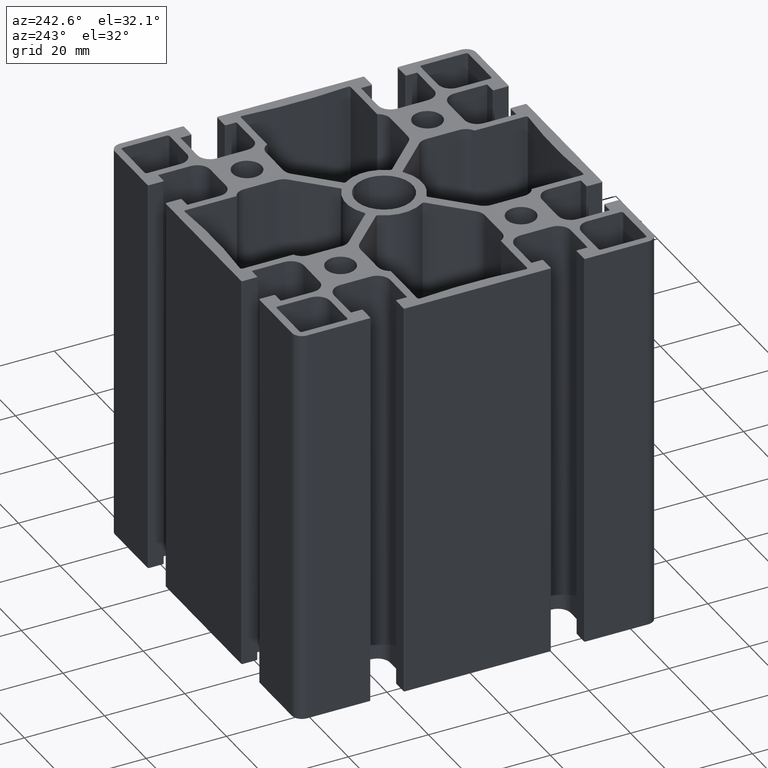
[diagram: clean part render]
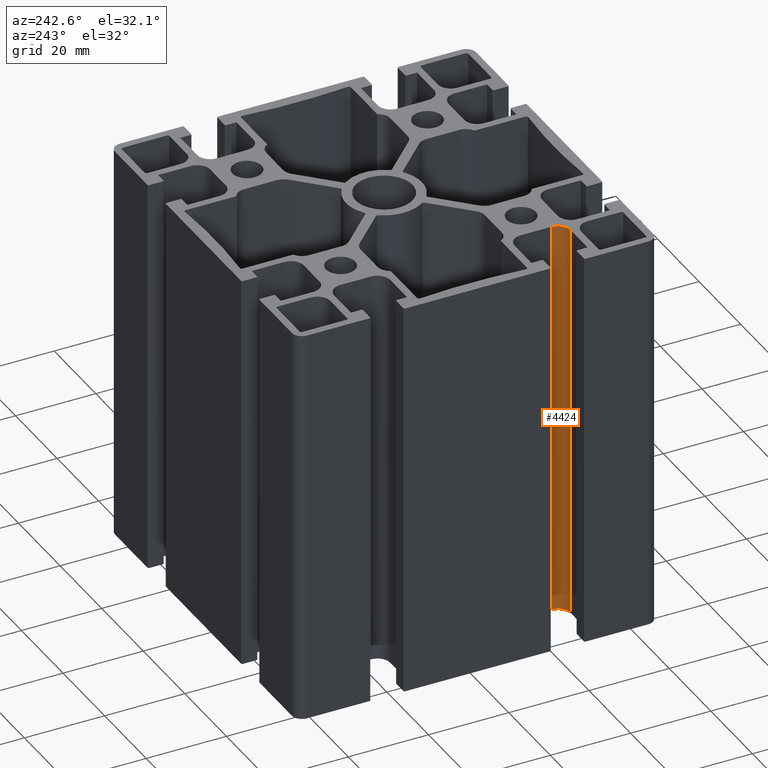
[diagram: same view with one face highlighted and labeled with its STEP entity id]
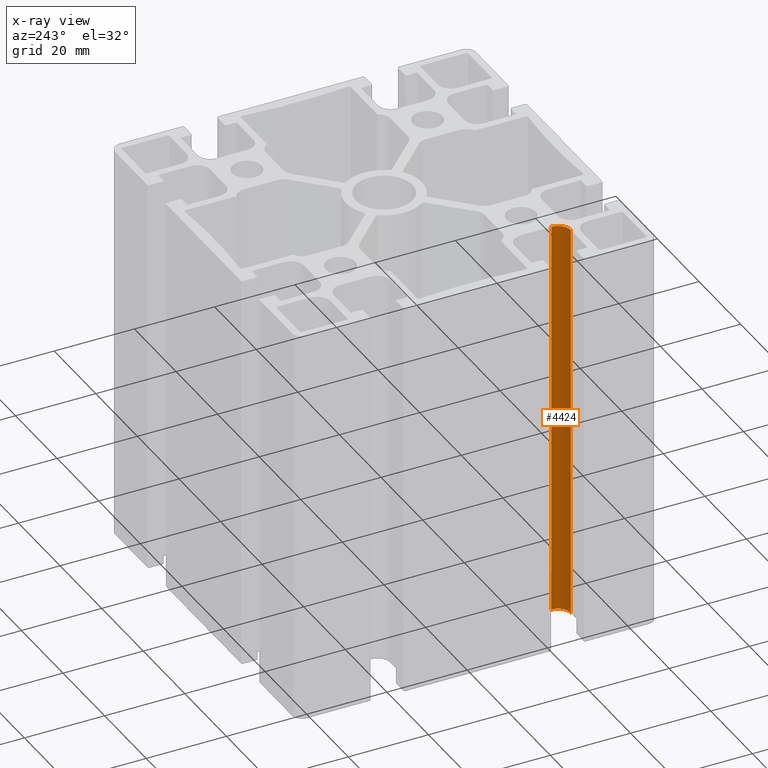
[diagram: x-ray of the same camera — body ghosted, the highlighted face saturated]
A machine part, auxiliary view. The second image highlights one B-rep face of the part: STEP entity #4424.
The next image is the same camera in x-ray: the body ghosted, the highlighted face saturated — about 0% of this face is hidden behind the body in this view.
In plain terms, the highlighted cylindrical surface (edge-blend (fillet) strip) has radius 3.2 mm, axis along (0, 0, 1).
Its self-contained STEP definition (entity closure, byte-faithful):
#328=FACE_OUTER_BOUND('',#556,.T.);
#556=EDGE_LOOP('',(#3501,#3502,#3503,#3504));
#959=LINE('',#7287,#1391);
#961=LINE('',#7293,#1393);
#1391=VECTOR('',#5966,100.);
#1393=VECTOR('',#5972,100.);
#1681=CIRCLE('',#4834,3.20000000000004);
#1682=CIRCLE('',#4835,3.20000000000004);
#2067=VERTEX_POINT('',#7284);
#2068=VERTEX_POINT('',#7286);
#2069=VERTEX_POINT('',#7290);
#2070=VERTEX_POINT('',#7292);
#2675=EDGE_CURVE('',#2067,#2068,#959,.T.);
#2677=EDGE_CURVE('',#2067,#2069,#1681,.T.);
#2678=EDGE_CURVE('',#2069,#2070,#961,.T.);
#2679=EDGE_CURVE('',#2068,#2070,#1682,.T.);
#3501=ORIENTED_EDGE('',*,*,#2677,.T.);
#3502=ORIENTED_EDGE('',*,*,#2678,.T.);
#3503=ORIENTED_EDGE('',*,*,#2679,.F.);
#3504=ORIENTED_EDGE('',*,*,#2675,.F.);
#4231=CYLINDRICAL_SURFACE('',#4833,3.20000000000004);
#4424=ADVANCED_FACE('',(#328),#4231,.F.);
#4833=AXIS2_PLACEMENT_3D('',#7289,#5968,#5969);
#4834=AXIS2_PLACEMENT_3D('',#7291,#5970,#5971);
#4835=AXIS2_PLACEMENT_3D('',#7294,#5973,#5974);
#5966=DIRECTION('',(0.,0.,-1.));
#5968=DIRECTION('center_axis',(0.,0.,1.));
#5969=DIRECTION('ref_axis',(0.,-1.,0.));
#5970=DIRECTION('center_axis',(0.,0.,1.));
#5971=DIRECTION('ref_axis',(0.,-1.,0.));
#5972=DIRECTION('',(0.,0.,-1.));
#5973=DIRECTION('center_axis',(0.,0.,1.));
#5974=DIRECTION('ref_axis',(0.,-1.,0.));
#7284=CARTESIAN_POINT('',(-32.9,-29.5,100.));
#7286=CARTESIAN_POINT('',(-32.9,-29.5,0.));
#7287=CARTESIAN_POINT('',(-32.9,-29.5,0.));
#7289=CARTESIAN_POINT('Origin',(-32.9,-26.3,0.));
#7290=CARTESIAN_POINT('',(-29.7,-26.3,100.));
#7291=CARTESIAN_POINT('Origin',(-32.9,-26.3,100.));
#7292=CARTESIAN_POINT('',(-29.7,-26.3,0.));
#7293=CARTESIAN_POINT('',(-29.7,-26.3,0.));
#7294=CARTESIAN_POINT('Origin',(-32.9,-26.3,0.));